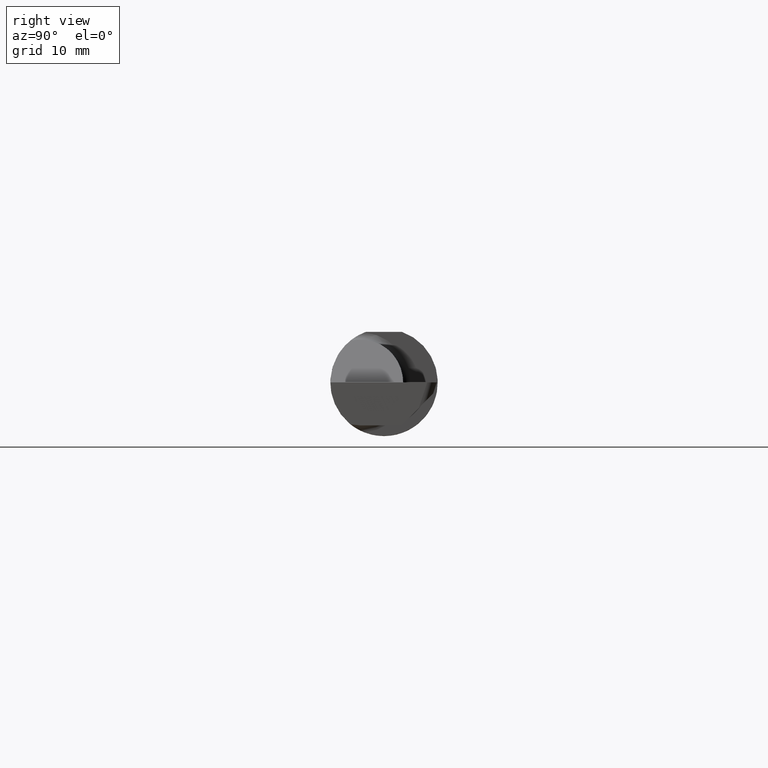
[diagram: clean part render]
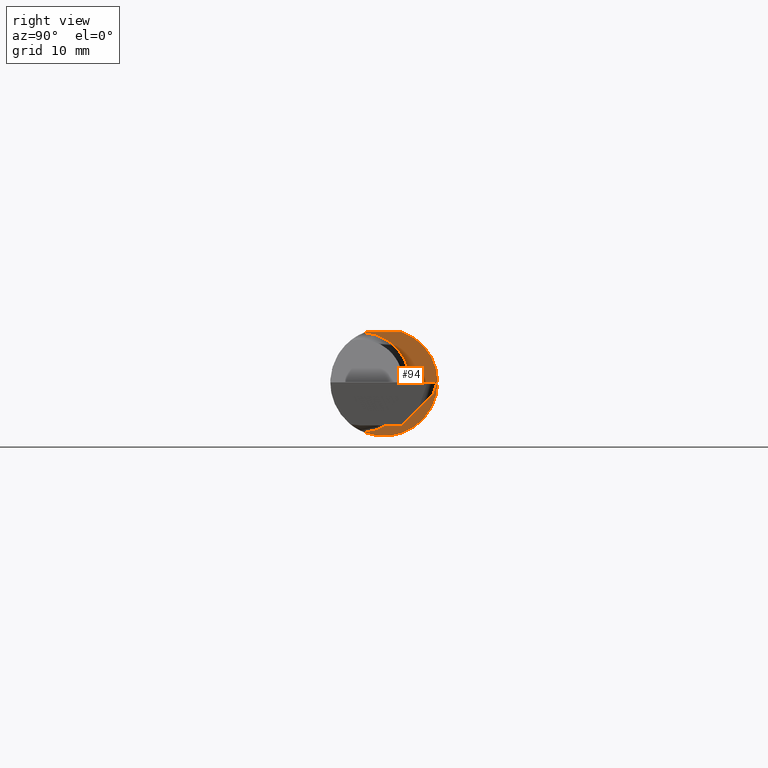
[diagram: same view with one face highlighted and labeled with its STEP entity id]
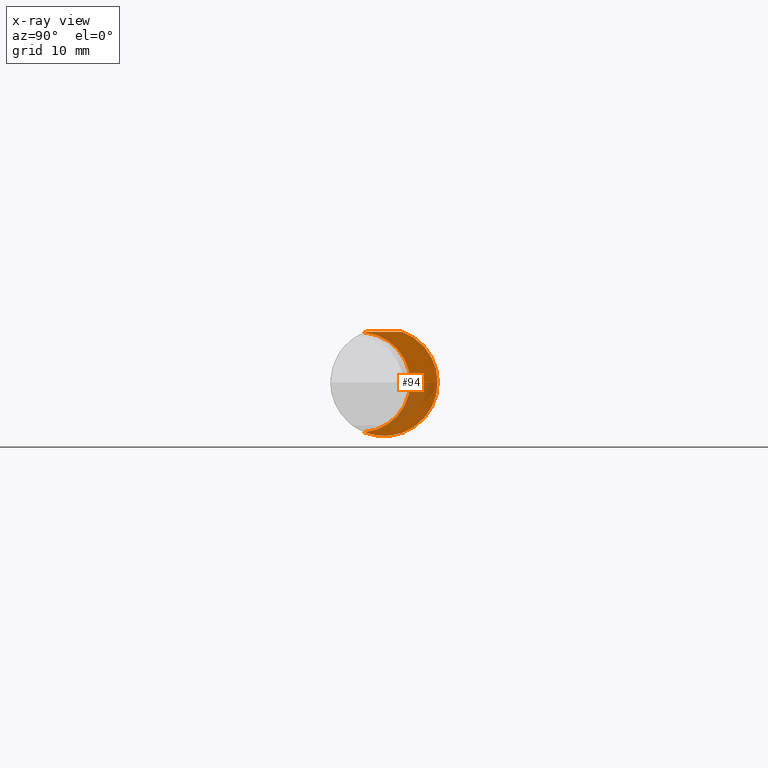
[diagram: x-ray of the same camera — body ghosted, the highlighted face saturated]
A machine part, right view. The second image highlights one B-rep face of the part: STEP entity #94.
The next image is the same camera in x-ray: the body ghosted, the highlighted face saturated — about 28% of this face is hidden behind the body in this view.
In plain terms, the highlighted planar face has unit normal (1, 0, 0).
Its self-contained STEP definition (entity closure, byte-faithful):
#5 = AXIS2_PLACEMENT_3D ( 'NONE', #609, #555, #159 ) ;
#9 = CARTESIAN_POINT ( 'NONE',  ( 1.450000000000000178, 0.1873499999999997667, 0.1763499999999999235 ) ) ;
#12 = CIRCLE ( 'NONE', #239, 0.1873499999999999888 ) ;
#21 = EDGE_CURVE ( 'NONE', #432, #138, #550, .T. ) ;
#25 = CIRCLE ( 'NONE', #368, 0.1749999999999999889 ) ;
#26 = DIRECTION ( 'NONE',  ( -1.000000000000000000, -5.190412334829046880E-17, -0.000000000000000000 ) ) ;
#46 = AXIS2_PLACEMENT_3D ( 'NONE', #601, #597, #607 ) ;
#53 = PLANE ( 'NONE',  #5 ) ;
#60 = EDGE_CURVE ( 'NONE', #432, #79, #393, .T. ) ;
#73 = DIRECTION ( 'NONE',  ( 0.000000000000000000, 1.000000000000000000, 0.000000000000000000 ) ) ;
#79 = VERTEX_POINT ( 'NONE', #218 ) ;
#94 = ADVANCED_FACE ( 'NONE', ( #172 ), #53, .T. ) ;
#138 = VERTEX_POINT ( 'NONE', #495 ) ;
#151 = ORIENTED_EDGE ( 'NONE', *, *, #223, .T. ) ;
#159 = DIRECTION ( 'NONE',  ( -5.190412334829047496E-17, 1.000000000000000000, 0.000000000000000000 ) ) ;
#164 = EDGE_CURVE ( 'NONE', #138, #194, #25, .T. ) ;
#172 = FACE_OUTER_BOUND ( 'NONE', #535, .T. ) ;
#175 = CARTESIAN_POINT ( 'NONE',  ( 1.450000000000000178, -0.06851976604679066440, -0.1743704796142198643 ) ) ;
#194 = VERTEX_POINT ( 'NONE', #175 ) ;
#202 = ORIENTED_EDGE ( 'NONE', *, *, #21, .T. ) ;
#218 = CARTESIAN_POINT ( 'NONE',  ( 1.450000000000000178, 0.06325108694718235836, 0.1763499999999999235 ) ) ;
#223 = EDGE_CURVE ( 'NONE', #194, #79, #12, .T. ) ;
#239 = AXIS2_PLACEMENT_3D ( 'NONE', #459, #683, #73 ) ;
#287 = CARTESIAN_POINT ( 'NONE',  ( 1.450000000000000178, -0.06325108694718287183, 0.1763499999999999235 ) ) ;
#368 = AXIS2_PLACEMENT_3D ( 'NONE', #410, #26, #619 ) ;
#390 = DIRECTION ( 'NONE',  ( -5.190412334829047496E-17, 1.000000000000000000, 0.000000000000000000 ) ) ;
#393 = LINE ( 'NONE', #9, #453 ) ;
#410 = CARTESIAN_POINT ( 'NONE',  ( 1.450000000000000178, -0.08335000000000004905, 0.000000000000000000 ) ) ;
#419 = ORIENTED_EDGE ( 'NONE', *, *, #164, .T. ) ;
#432 = VERTEX_POINT ( 'NONE', #287 ) ;
#453 = VECTOR ( 'NONE', #390, 39.37007874015748143 ) ;
#459 = CARTESIAN_POINT ( 'NONE',  ( 1.450000000000000178, 0.000000000000000000, 0.000000000000000000 ) ) ;
#495 = CARTESIAN_POINT ( 'NONE',  ( 1.450000000000000178, -0.06851976604679066440, 0.1743704796142198643 ) ) ;
#535 = EDGE_LOOP ( 'NONE', ( #151, #589, #202, #419 ) ) ;
#550 = CIRCLE ( 'NONE', #46, 0.1873499999999999888 ) ;
#555 = DIRECTION ( 'NONE',  ( 1.000000000000000000, 5.190412334829047496E-17, 0.000000000000000000 ) ) ;
#589 = ORIENTED_EDGE ( 'NONE', *, *, #60, .F. ) ;
#597 = DIRECTION ( 'NONE',  ( 1.000000000000000000, 5.190412334829046880E-17, 0.000000000000000000 ) ) ;
#601 = CARTESIAN_POINT ( 'NONE',  ( 1.450000000000000178, 0.000000000000000000, 0.000000000000000000 ) ) ;
#607 = DIRECTION ( 'NONE',  ( 0.000000000000000000, 1.000000000000000000, 0.000000000000000000 ) ) ;
#609 = CARTESIAN_POINT ( 'NONE',  ( 1.450000000000000178, 0.1873499999999998500, 0.000000000000000000 ) ) ;
#619 = DIRECTION ( 'NONE',  ( 0.000000000000000000, -1.000000000000000000, 0.000000000000000000 ) ) ;
#683 = DIRECTION ( 'NONE',  ( 1.000000000000000000, 5.190412334829046880E-17, 0.000000000000000000 ) ) ;